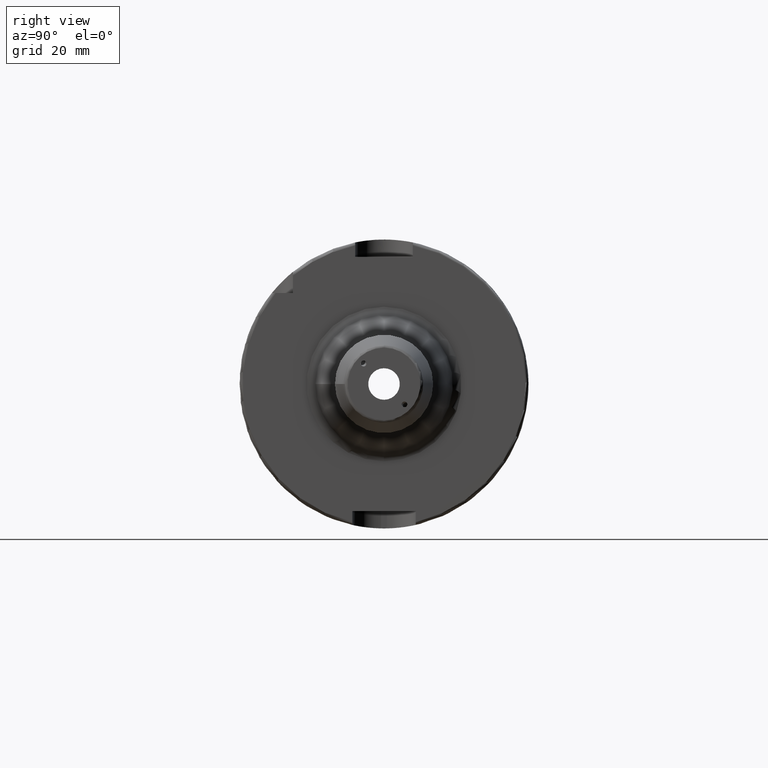
[diagram: clean part render]
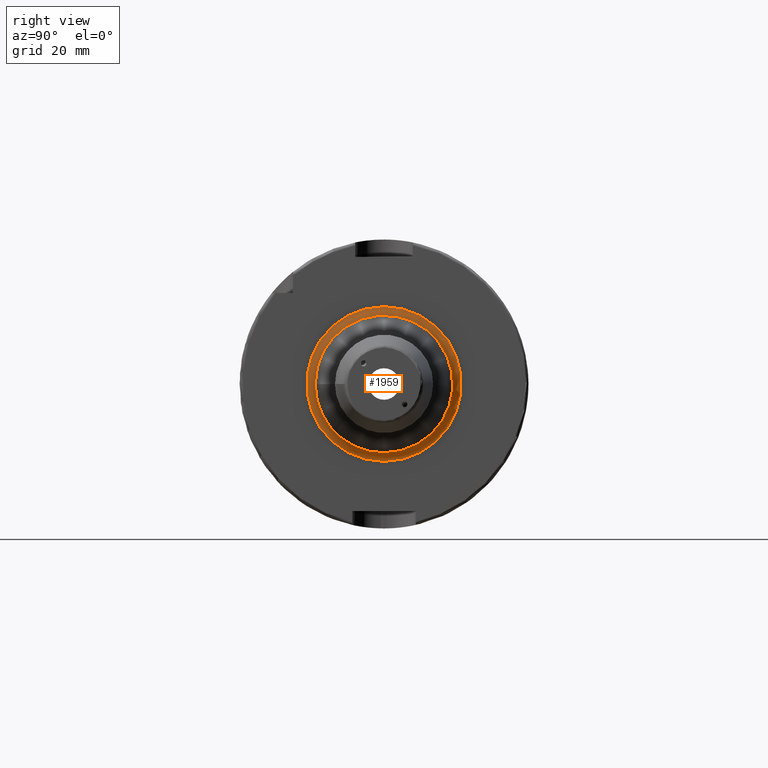
[diagram: same view with one face highlighted and labeled with its STEP entity id]
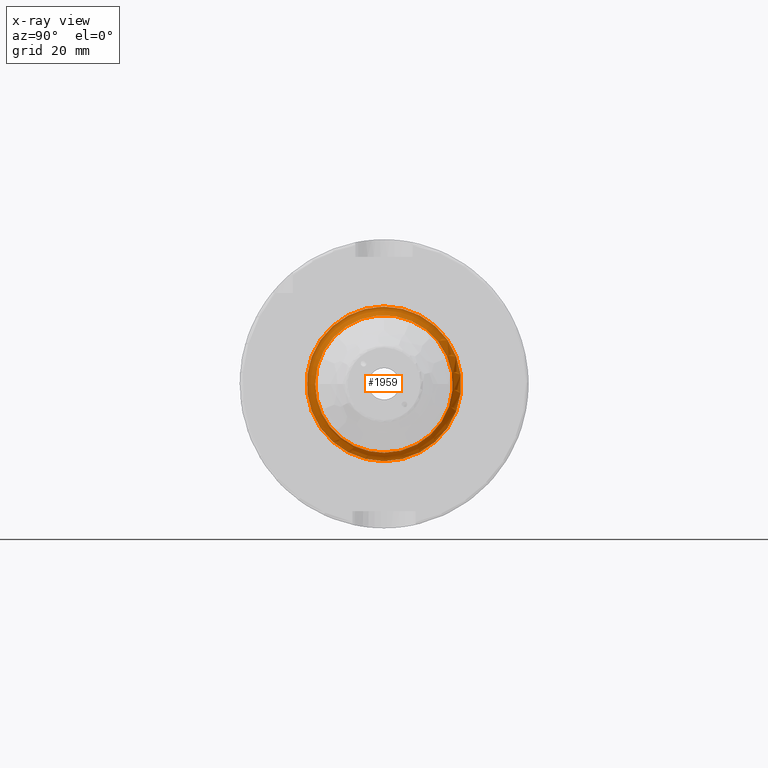
[diagram: x-ray of the same camera — body ghosted, the highlighted face saturated]
A machine part, right view. The second image highlights one B-rep face of the part: STEP entity #1959.
The next image is the same camera in x-ray: the body ghosted, the highlighted face saturated — about 0% of this face is hidden behind the body in this view.
In plain terms, the highlighted toroidal blend (fillet) surface has major radius 26.7754 mm and minor (blend) radius 3 mm.
Its self-contained STEP definition (entity closure, byte-faithful):
#137=TOROIDAL_SURFACE('',#2110,26.7754427832707,3.);
#214=FACE_OUTER_BOUND('',#335,.T.);
#335=EDGE_LOOP('',(#1339,#1340,#1341,#1342,#1343));
#676=CIRCLE('',#2111,23.8046385770459);
#677=CIRCLE('',#2112,3.);
#678=CIRCLE('',#2113,26.7754427832707);
#679=CIRCLE('',#2114,23.8046385770459);
#807=VERTEX_POINT('',#2998);
#808=VERTEX_POINT('',#2999);
#809=VERTEX_POINT('',#3001);
#1014=EDGE_CURVE('',#807,#808,#676,.T.);
#1015=EDGE_CURVE('',#808,#809,#677,.T.);
#1016=EDGE_CURVE('',#809,#809,#678,.T.);
#1017=EDGE_CURVE('',#808,#807,#679,.T.);
#1339=ORIENTED_EDGE('',*,*,#1014,.T.);
#1340=ORIENTED_EDGE('',*,*,#1015,.T.);
#1341=ORIENTED_EDGE('',*,*,#1016,.T.);
#1342=ORIENTED_EDGE('',*,*,#1015,.F.);
#1343=ORIENTED_EDGE('',*,*,#1017,.T.);
#1959=ADVANCED_FACE('',(#214),#137,.F.);
#2110=AXIS2_PLACEMENT_3D('',#2997,#2388,#2389);
#2111=AXIS2_PLACEMENT_3D('',#3000,#2390,#2391);
#2112=AXIS2_PLACEMENT_3D('',#3002,#2392,#2393);
#2113=AXIS2_PLACEMENT_3D('',#3003,#2394,#2395);
#2114=AXIS2_PLACEMENT_3D('',#3004,#2396,#2397);
#2388=DIRECTION('center_axis',(-1.,0.,0.));
#2389=DIRECTION('ref_axis',(0.,0.,1.));
#2390=DIRECTION('center_axis',(-1.,0.,0.));
#2391=DIRECTION('ref_axis',(0.,-1.,-1.22464679914735E-16));
#2392=DIRECTION('center_axis',(0.,-1.,1.22464679914735E-16));
#2393=DIRECTION('ref_axis',(0.,-1.22464679914735E-16,-1.));
#2394=DIRECTION('center_axis',(1.,0.,0.));
#2395=DIRECTION('ref_axis',(0.,-1.,-1.22464679914735E-16));
#2396=DIRECTION('center_axis',(-1.,0.,0.));
#2397=DIRECTION('ref_axis',(0.,-1.,-1.22464679914735E-16));
#2997=CARTESIAN_POINT('Origin',(32.,0.,0.));
#2998=CARTESIAN_POINT('',(31.5824806971198,-23.8046385770459,-2.91522744382389E-15));
#2999=CARTESIAN_POINT('',(31.5824806971198,-2.91522744382389E-15,-23.8046385770459));
#3000=CARTESIAN_POINT('Origin',(31.5824806971198,0.,0.));
#3001=CARTESIAN_POINT('',(29.,-3.27904603002855E-15,-26.7754427832707));
#3002=CARTESIAN_POINT('Origin',(32.,-3.27904603002855E-15,-26.7754427832707));
#3003=CARTESIAN_POINT('Origin',(29.,0.,0.));
#3004=CARTESIAN_POINT('Origin',(31.5824806971198,0.,0.));